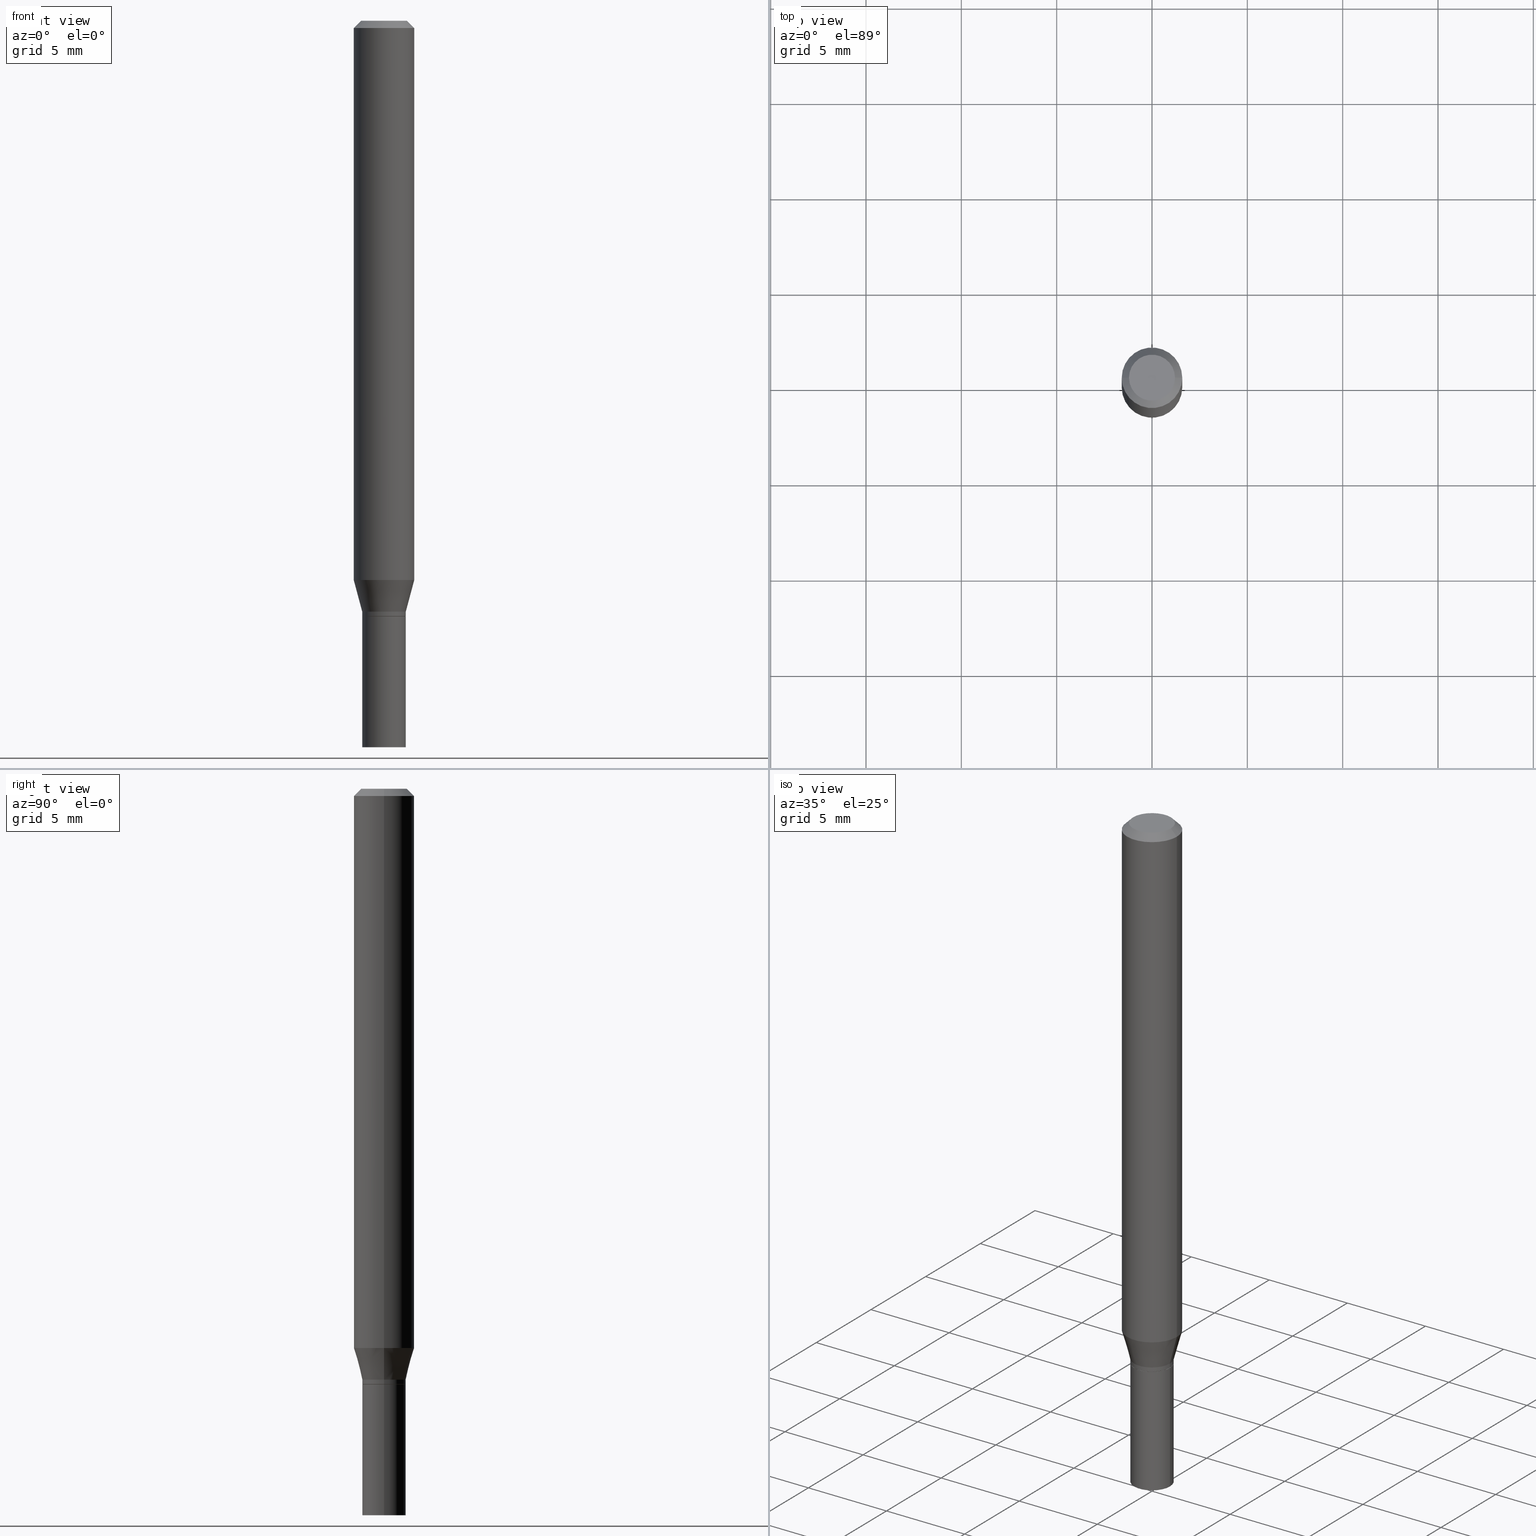
[diagram: canonical four-view strip — front | top / right | iso, engineering-drawing reading convention]
A machine part, canonical four-view strip (front | top / right | iso — engineering-drawing reading convention). The complete STEP part file that produces these views, byte-faithful:
ISO-10303-21;
HEADER;
FILE_DESCRIPTION (( 'STEP AP203' ),
    '1' );
FILE_NAME ('02496.STEP',
    '2024-03-18T20:57:49',
    ( '' ),
    ( '' ),
    'SwSTEP 2.0',
    'SolidWorks 2023',
    '' );
FILE_SCHEMA (( 'CONFIG_CONTROL_DESIGN' ));
ENDSEC;

DATA;
#1 = CARTESIAN_POINT ( 'NONE',  ( 3.007926631607718216E-29, -4.294522046777069173E-15, -1.230000000000000204 ) ) ;
#2 = DIRECTION ( 'NONE',  ( -2.445468806185136597E-29, 3.491481338843145583E-15, 1.000000000000000000 ) ) ;
#3 = LINE ( 'NONE', #354, #329 ) ;
#4 = AXIS2_PLACEMENT_3D ( 'NONE', #176, #289, #28 ) ;
#5 = PERSON_AND_ORGANIZATION ( #246, #456 ) ;
#6 = APPROVAL_DATE_TIME ( #402, #66 ) ;
#7 = LINE ( 'NONE', #290, #72 ) ;
#8 = DIRECTION ( 'NONE',  ( 1.000000000000000000, -6.982962677686257244E-15, 0.000000000000000000 ) ) ;
#9 = EDGE_CURVE ( 'NONE', #187, #444, #300, .T. ) ;
#10 = CIRCLE ( 'NONE', #71, 0.06250000000000000000 ) ;
#11 = CIRCLE ( 'NONE', #284, 0.04499999999999999833 ) ;
#12 = CARTESIAN_POINT ( 'NONE',  ( 3.007926631607718216E-29, -4.294522046777069173E-15, -1.230000000000000204 ) ) ;
#13 = DIRECTION ( 'NONE',  ( 1.000000000000000000, -6.982962677686259611E-15, 0.000000000000000000 ) ) ;
#14 = CC_DESIGN_PERSON_AND_ORGANIZATION_ASSIGNMENT ( #338, #70, ( #123 ) ) ;
#15 = COORDINATED_UNIVERSAL_TIME_OFFSET ( 5, 0, .BEHIND. ) ;
#16 = VERTEX_POINT ( 'NONE', #163 ) ;
#17 =( LENGTH_UNIT ( ) NAMED_UNIT ( * ) SI_UNIT ( $, .METRE. ) );
#18 = CIRCLE ( 'NONE', #345, 0.04500000000000019262 ) ;
#19 = CC_DESIGN_SECURITY_CLASSIFICATION ( #55, ( #138 ) ) ;
#20 = DIRECTION ( 'NONE',  ( 1.000000000000000000, -6.982962677686269077E-15, 0.000000000000000000 ) ) ;
#21 = DIRECTION ( 'NONE',  ( -2.445468806185136597E-29, 3.491481338843145583E-15, 1.000000000000000000 ) ) ;
#22 = CIRCLE ( 'NONE', #427, 0.04749999999999999362 ) ;
#23 = ORIENTED_EDGE ( 'NONE', *, *, #169, .T. ) ;
#24 = VECTOR ( 'NONE', #119, 39.37007874015748143 ) ;
#25 = CC_DESIGN_PERSON_AND_ORGANIZATION_ASSIGNMENT ( #261, #332, ( #138 ) ) ;
#26 = EDGE_CURVE ( 'NONE', #227, #368, #355, .T. ) ;
#27 = VERTEX_POINT ( 'NONE', #202 ) ;
#28 = DIRECTION ( 'NONE',  ( 1.000000000000000000, -6.982962677686259611E-15, 0.000000000000000000 ) ) ;
#29 = DIRECTION ( 'NONE',  ( 1.000000000000000000, -6.982962677686266711E-15, 4.876176775795935793E-29 ) ) ;
#30 = AXIS2_PLACEMENT_3D ( 'NONE', #167, #139, #20 ) ;
#31 = ORIENTED_EDGE ( 'NONE', *, *, #64, .T. ) ;
#32 = DIRECTION ( 'NONE',  ( -0.7071067811865454633, 2.468850131082235761E-15, -0.7071067811865493491 ) ) ;
#33 = CALENDAR_DATE ( 2024, 18, 3 ) ;
#34 = CARTESIAN_POINT ( 'NONE',  ( 3.316907271900976096E-16, 0.04749999999999999362, -1.224772766956247324E-16 ) ) ;
#35 = ORIENTED_EDGE ( 'NONE', *, *, #26, .F. ) ;
#36 = CARTESIAN_POINT ( 'NONE',  ( 3.007926631607718216E-29, -4.294522046777069173E-15, -1.230000000000000204 ) ) ;
#37 = FACE_OUTER_BOUND ( 'NONE', #312, .T. ) ;
#38 = EDGE_LOOP ( 'NONE', ( #133, #68, #414, #301 ) ) ;
#39 = ORIENTED_EDGE ( 'NONE', *, *, #9, .F. ) ;
#40 = CARTESIAN_POINT ( 'NONE',  ( 3.668203209277705088E-31, -5.237222008264718399E-17, -0.01499999999999999944 ) ) ;
#41 = AXIS2_PLACEMENT_3D ( 'NONE', #36, #126, #8 ) ;
#42 = DIRECTION ( 'NONE',  ( 1.000000000000000000, 0.000000000000000000, 0.000000000000000000 ) ) ;
#43 = LOCAL_TIME ( 16, 57, 49.00000000000000000, #228 ) ;
#44 = ORIENTED_EDGE ( 'NONE', *, *, #85, .F. ) ;
#45 = DIRECTION ( 'NONE',  ( 0.000000000000000000, 0.000000000000000000, 1.000000000000000000 ) ) ;
#46 = VERTEX_POINT ( 'NONE', #206 ) ;
#47 = AXIS2_PLACEMENT_3D ( 'NONE', #309, #45, #42 ) ;
#48 = ORIENTED_EDGE ( 'NONE', *, *, #275, .T. ) ;
#49 = ADVANCED_FACE ( 'NONE', ( #209 ), #350, .T. ) ;
#50 = VERTEX_POINT ( 'NONE', #318 ) ;
#51 = ADVANCED_FACE ( 'NONE', ( #131 ), #213, .T. ) ;
#52 = CARTESIAN_POINT ( 'NONE',  ( 3.007926631607718216E-29, -4.294522046777069173E-15, -1.230000000000000204 ) ) ;
#53 = ORIENTED_EDGE ( 'NONE', *, *, #296, .F. ) ;
#54 = DATE_TIME_ROLE ( 'classification_date' ) ;
#55 = SECURITY_CLASSIFICATION ( '', '', #374 ) ;
#56 = ORIENTED_EDGE ( 'NONE', *, *, #464, .T. ) ;
#57 = EDGE_LOOP ( 'NONE', ( #344, #415, #48, #184 ) ) ;
#58 = DIRECTION ( 'NONE',  ( -2.438088387897960049E-29, 3.491481338843145188E-15, 1.000000000000000000 ) ) ;
#59 = ORIENTED_EDGE ( 'NONE', *, *, #358, .F. ) ;
#60 = CYLINDRICAL_SURFACE ( 'NONE', #282, 0.04499999999999999833 ) ;
#61 = VECTOR ( 'NONE', #424, 39.37007874015748143 ) ;
#62 = AXIS2_PLACEMENT_3D ( 'NONE', #40, #260, #185 ) ;
#63 = APPLICATION_CONTEXT ( 'configuration controlled 3d designs of mechanical parts and assemblies' ) ;
#64 = EDGE_CURVE ( 'NONE', #235, #27, #10, .T. ) ;
#65 = CARTESIAN_POINT ( 'NONE',  ( 0.04500000000000019262, -4.573840553884520788E-15, -1.220000000000000195 ) ) ;
#66 = APPROVAL ( #182, 'UNSPECIFIED' ) ;
#67 = ORIENTED_EDGE ( 'NONE', *, *, #86, .T. ) ;
#68 = ORIENTED_EDGE ( 'NONE', *, *, #446, .T. ) ;
#69 = DIRECTION ( 'NONE',  ( 0.2588190451025205174, 1.565188264969628476E-15, 0.9659258262890684232 ) ) ;
#70 = PERSON_AND_ORGANIZATION_ROLE ( 'creator' ) ;
#71 = AXIS2_PLACEMENT_3D ( 'NONE', #323, #285, #459 ) ;
#72 = VECTOR ( 'NONE', #186, 39.37007874015748143 ) ;
#73 = CARTESIAN_POINT ( 'NONE',  ( 3.142333204959120083E-16, 0.04499999999999570316, -1.230000000000000204 ) ) ;
#74 = VERTEX_POINT ( 'NONE', #243 ) ;
#75 = PERSON_AND_ORGANIZATION_ROLE ( 'design_owner' ) ;
#76 =( NAMED_UNIT ( * ) SI_UNIT ( $, .STERADIAN. ) SOLID_ANGLE_UNIT ( ) );
#77 = DIRECTION ( 'NONE',  ( -2.445468806185136597E-29, 3.491481338843145583E-15, 1.000000000000000000 ) ) ;
#78 = PERSON_AND_ORGANIZATION ( #246, #456 ) ;
#79 = DIRECTION ( 'NONE',  ( -2.445468806185136597E-29, 3.491481338843145583E-15, 1.000000000000000000 ) ) ;
#80 = ORIENTED_EDGE ( 'NONE', *, *, #360, .T. ) ;
#81 = AXIS2_PLACEMENT_3D ( 'NONE', #73, #222, #114 ) ;
#82 = DIRECTION ( 'NONE',  ( -2.445468806185136877E-29, 3.491481338843145188E-15, 1.000000000000000000 ) ) ;
#83 = ORIENTED_EDGE ( 'NONE', *, *, #442, .F. ) ;
#84 = CARTESIAN_POINT ( 'NONE',  ( 3.668203209277704895E-29, -5.237222008264718177E-15, -1.500000000000000222 ) ) ;
#85 = EDGE_CURVE ( 'NONE', #50, #168, #22, .T. ) ;
#86 = EDGE_CURVE ( 'NONE', #245, #444, #135, .T. ) ;
#87 = ORIENTED_EDGE ( 'NONE', *, *, #85, .T. ) ;
#88 = DIRECTION ( 'NONE',  ( 2.445468806185136597E-29, -3.491481338843145583E-15, -1.000000000000000000 ) ) ;
#89 = DIRECTION ( 'NONE',  ( -2.445468806185136597E-29, 3.491481338843145583E-15, 1.000000000000000000 ) ) ;
#90 = ORIENTED_EDGE ( 'NONE', *, *, #446, .F. ) ;
#91 = ADVANCED_FACE ( 'NONE', ( #248 ), #392, .F. ) ;
#92 = CARTESIAN_POINT ( 'NONE',  ( 3.668203209277705088E-31, -5.237222008264718399E-17, -0.01499999999999999944 ) ) ;
#93 = ORIENTED_EDGE ( 'NONE', *, *, #346, .F. ) ;
#94 = AXIS2_PLACEMENT_3D ( 'NONE', #249, #321, #96 ) ;
#95 = APPROVAL_PERSON_ORGANIZATION ( #460, #146, #197 ) ;
#96 = DIRECTION ( 'NONE',  ( 1.000000000000000000, -6.982962677686257244E-15, 0.000000000000000000 ) ) ;
#97 = UNCERTAINTY_MEASURE_WITH_UNIT (LENGTH_MEASURE( 1.000000000000000082E-05 ), #156, 'distance_accuracy_value', 'NONE');
#98 = CARTESIAN_POINT ( 'NONE',  ( -0.04500000000000012323, 3.197442310920459593E-16, -2.213520790614713866E-30 ) ) ;
#99 = DIRECTION ( 'NONE',  ( -2.445468806185136597E-29, 3.491481338843145583E-15, 1.000000000000000000 ) ) ;
#100 = MANIFOLD_SOLID_BREP ( 'Body-Move/Copy2[2]', #455 ) ;
#101 = EDGE_CURVE ( 'NONE', #74, #16, #466, .T. ) ;
#102 = CONICAL_SURFACE ( 'NONE', #395, 0.04449999999999999789, 0.7853981633974739252 ) ;
#103 = AXIS2_PLACEMENT_3D ( 'NONE', #292, #77, #104 ) ;
#104 = DIRECTION ( 'NONE',  ( 1.000000000000000000, -6.982962677686270655E-15, 0.000000000000000000 ) ) ;
#105 = DIRECTION ( 'NONE',  ( -2.445468806185136597E-29, 3.491481338843145583E-15, 1.000000000000000000 ) ) ;
#106 = EDGE_CURVE ( 'NONE', #368, #227, #362, .T. ) ;
#107 = ADVANCED_FACE ( 'NONE', ( #188 ), #102, .T. ) ;
#108 = CARTESIAN_POINT ( 'NONE',  ( 0.04500000000000019262, -4.573840553884520788E-15, -1.220000000000000195 ) ) ;
#109 = DIRECTION ( 'NONE',  ( -2.445468806185136597E-29, 3.491481338843145583E-15, 1.000000000000000000 ) ) ;
#110 = PERSON_AND_ORGANIZATION ( #246, #456 ) ;
#111 = DIRECTION ( 'NONE',  ( -2.445468806185136877E-29, 3.491481338843145188E-15, 1.000000000000000000 ) ) ;
#112 = DATE_AND_TIME ( #33, #43 ) ;
#113 = AXIS2_PLACEMENT_3D ( 'NONE', #412, #447, #271 ) ;
#114 = DIRECTION ( 'NONE',  ( -1.000000000000000000, 6.982962677686265922E-15, -4.876176775795935793E-29 ) ) ;
#115 = LINE ( 'NONE', #406, #24 ) ;
#116 = CALENDAR_DATE ( 2024, 18, 3 ) ;
#117 = DIRECTION ( 'NONE',  ( -2.445468806185136597E-29, 3.491481338843145583E-15, 1.000000000000000000 ) ) ;
#118 = ORIENTED_EDGE ( 'NONE', *, *, #101, .F. ) ;
#119 = DIRECTION ( 'NONE',  ( 0.7071067811865656694, -2.468850131082446387E-15, 0.7071067811865294761 ) ) ;
#120 = LENGTH_MEASURE_WITH_UNIT ( LENGTH_MEASURE( 0.02539999999999999897 ), #17 );
#121 = CIRCLE ( 'NONE', #62, 0.06250000000000000000 ) ;
#122 = LINE ( 'NONE', #270, #303 ) ;
#123 = PRODUCT_DEFINITION ( 'UNKNOWN', '', #138, #336 ) ;
#124 = ORIENTED_EDGE ( 'NONE', *, *, #358, .T. ) ;
#125 = EDGE_CURVE ( 'NONE', #74, #409, #128, .T. ) ;
#126 = DIRECTION ( 'NONE',  ( -2.445468806185136597E-29, 3.491481338843145583E-15, 1.000000000000000000 ) ) ;
#127 = ORIENTED_EDGE ( 'NONE', *, *, #464, .F. ) ;
#128 = CIRCLE ( 'NONE', #251, 0.04500000000000006078 ) ;
#129 = AXIS2_PLACEMENT_3D ( 'NONE', #84, #383, #322 ) ;
#130 = ORIENTED_EDGE ( 'NONE', *, *, #106, .T. ) ;
#131 = FACE_OUTER_BOUND ( 'NONE', #57, .T. ) ;
#132 = EDGE_LOOP ( 'NONE', ( #87, #124 ) ) ;
#133 = ORIENTED_EDGE ( 'NONE', *, *, #263, .T. ) ;
#134 = ORIENTED_EDGE ( 'NONE', *, *, #86, .F. ) ;
#135 = LINE ( 'NONE', #283, #61 ) ;
#136 = CARTESIAN_POINT ( 'NONE',  ( 3.668203209277705088E-31, -5.237222008264718399E-17, -0.01499999999999999944 ) ) ;
#137 = CIRCLE ( 'NONE', #198, 0.04499999999999999833 ) ;
#138 = PRODUCT_DEFINITION_FORMATION_WITH_SPECIFIED_SOURCE ( 'ANY', '', #281, .NOT_KNOWN. ) ;
#139 = DIRECTION ( 'NONE',  ( -2.445468806185136597E-29, 3.491481338843145583E-15, 1.000000000000000000 ) ) ;
#140 = EDGE_CURVE ( 'NONE', #227, #74, #200, .T. ) ;
#141 = CARTESIAN_POINT ( 'NONE',  ( 0.06250000000000000000, -4.888073874380388472E-16, -0.01499999999999999944 ) ) ;
#142 = ADVANCED_FACE ( 'NONE', ( #416 ), #212, .F. ) ;
#143 = DIRECTION ( 'NONE',  ( -2.445468806185136597E-29, 3.491481338843145583E-15, 1.000000000000000000 ) ) ;
#144 = CARTESIAN_POINT ( 'NONE',  ( 2.983471943545866670E-29, -4.259607233388637524E-15, -1.220000000000000195 ) ) ;
#145 = AXIS2_PLACEMENT_3D ( 'NONE', #175, #99, #149 ) ;
#146 = APPROVAL ( #378, 'UNSPECIFIED' ) ;
#147 = FACE_OUTER_BOUND ( 'NONE', #380, .T. ) ;
#148 = CARTESIAN_POINT ( 'NONE',  ( 0.06250000000000000000, -4.364351673553916694E-16, 3.047610484872459871E-30 ) ) ;
#149 = DIRECTION ( 'NONE',  ( 1.000000000000000000, -6.982962677686266711E-15, 4.876176775795936353E-29 ) ) ;
#150 = DATE_AND_TIME ( #116, #252 ) ;
#151 = CARTESIAN_POINT ( 'NONE',  ( 0.04449999999999999789, -4.605263885934107852E-15, -1.230000000000000204 ) ) ;
#152 = APPROVAL_ROLE ( '' ) ;
#153 = AXIS2_PLACEMENT_3D ( 'NONE', #52, #89, #421 ) ;
#154 = LINE ( 'NONE', #377, #410 ) ;
#155 = ORIENTED_EDGE ( 'NONE', *, *, #247, .F. ) ;
#156 =( CONVERSION_BASED_UNIT ( 'INCH', #120 ) LENGTH_UNIT ( ) NAMED_UNIT ( #349 ) );
#157 = ORIENTED_EDGE ( 'NONE', *, *, #169, .F. ) ;
#158 = CYLINDRICAL_SURFACE ( 'NONE', #113, 0.04500000000000012323 ) ;
#159 = ORIENTED_EDGE ( 'NONE', *, *, #442, .T. ) ;
#160 = CIRCLE ( 'NONE', #103, 0.06250000000000000000 ) ;
#161 = CARTESIAN_POINT ( 'NONE',  ( -0.04449999999999999789, -3.978330529363824704E-15, -1.230000000000000204 ) ) ;
#162 = EDGE_LOOP ( 'NONE', ( #408, #53 ) ) ;
#163 = CARTESIAN_POINT ( 'NONE',  ( -0.04500000000000019262, -3.763674637602973398E-15, -1.220000000000000195 ) ) ;
#164 = DIRECTION ( 'NONE',  ( 1.000000000000000000, -6.982962677686266711E-15, 4.876176775795935793E-29 ) ) ;
#165 = CIRCLE ( 'NONE', #311, 0.04500000000000019262 ) ;
#166 = ORIENTED_EDGE ( 'NONE', *, *, #226, .T. ) ;
#167 = CARTESIAN_POINT ( 'NONE',  ( 3.007926631607718216E-29, -4.294522046777069173E-15, -1.230000000000000204 ) ) ;
#168 = VERTEX_POINT ( 'NONE', #361 ) ;
#169 = EDGE_CURVE ( 'NONE', #319, #454, #326, .T. ) ;
#170 = ORIENTED_EDGE ( 'NONE', *, *, #247, .T. ) ;
#171 = ADVANCED_FACE ( 'NONE', ( #147 ), #205, .T. ) ;
#172 = AXIS2_PLACEMENT_3D ( 'NONE', #92, #88, #384 ) ;
#173 = ADVANCED_FACE ( 'NONE', ( #215 ), #220, .T. ) ;
#174 = CARTESIAN_POINT ( 'NONE',  ( 0.000000000000000000, 0.000000000000000000, 0.000000000000000000 ) ) ;
#175 = CARTESIAN_POINT ( 'NONE',  ( 0.000000000000000000, 0.000000000000000000, 0.000000000000000000 ) ) ;
#176 = CARTESIAN_POINT ( 'NONE',  ( 2.983471943545866670E-29, -4.259607233388637524E-15, -1.220000000000000195 ) ) ;
#177 = FACE_OUTER_BOUND ( 'NONE', #450, .T. ) ;
#178 = VECTOR ( 'NONE', #452, 39.37007874015748143 ) ;
#179 = LOCAL_TIME ( 16, 57, 49.00000000000000000, #15 ) ;
#180 = EDGE_LOOP ( 'NONE', ( #130, #223, #229, #458 ) ) ;
#181 = DIRECTION ( 'NONE',  ( -2.438088387897960049E-29, 3.491481338843145188E-15, 1.000000000000000000 ) ) ;
#182 = APPROVAL_STATUS ( 'not_yet_approved' ) ;
#183 = CARTESIAN_POINT ( 'NONE',  ( -2.121106073929386760E-45, 3.028377322213383622E-31, 8.673617379884936499E-17 ) ) ;
#184 = ORIENTED_EDGE ( 'NONE', *, *, #125, .F. ) ;
#185 = DIRECTION ( 'NONE',  ( 1.000000000000000000, -6.982962677686266711E-15, 0.000000000000000000 ) ) ;
#186 = DIRECTION ( 'NONE',  ( -2.445468806185136877E-29, 3.491481338843145188E-15, 1.000000000000000000 ) ) ;
#187 = VERTEX_POINT ( 'NONE', #328 ) ;
#188 = FACE_OUTER_BOUND ( 'NONE', #180, .T. ) ;
#189 = EDGE_CURVE ( 'NONE', #50, #27, #3, .T. ) ;
#190 = CALENDAR_DATE ( 2024, 18, 3 ) ;
#191 = AXIS2_PLACEMENT_3D ( 'NONE', #183, #298, #429 ) ;
#192 = CARTESIAN_POINT ( 'NONE',  ( -0.04499999999999999833, -4.446127796428848702E-15, -1.230000000000000204 ) ) ;
#193 = EDGE_LOOP ( 'NONE', ( #341, #56, #388, #157 ) ) ;
#194 = ORIENTED_EDGE ( 'NONE', *, *, #262, .F. ) ;
#195 = EDGE_CURVE ( 'NONE', #409, #319, #295, .T. ) ;
#196 = LINE ( 'NONE', #445, #417 ) ;
#197 = APPROVAL_ROLE ( '' ) ;
#198 = AXIS2_PLACEMENT_3D ( 'NONE', #1, #143, #304 ) ;
#199 = CIRCLE ( 'NONE', #129, 0.04499999999999999833 ) ;
#200 = LINE ( 'NONE', #161, #178 ) ;
#201 = FACE_OUTER_BOUND ( 'NONE', #371, .T. ) ;
#202 = CARTESIAN_POINT ( 'NONE',  ( -0.06250000000000000000, -1.597884641570970340E-15, -0.01499999999999999944 ) ) ;
#203 = VERTEX_POINT ( 'NONE', #257 ) ;
#204 = PRODUCT_DEFINITION_SHAPE ( 'NONE', 'NONE',  #123 ) ;
#205 = CONICAL_SURFACE ( 'NONE', #4, 0.04500000000000019262, 0.2617993877991491858 ) ;
#206 = CARTESIAN_POINT ( 'NONE',  ( 0.04499999999999999833, -5.551455328760600652E-15, -1.500000000000000222 ) ) ;
#207 = CONICAL_SURFACE ( 'NONE', #390, 0.06250000000000000000, 0.7853981633974456145 ) ;
#208 = CARTESIAN_POINT ( 'NONE',  ( 0.04500000000000006078, -4.607009626603530145E-15, -1.229500000000000037 ) ) ;
#209 = FACE_OUTER_BOUND ( 'NONE', #38, .T. ) ;
#210 = CC_DESIGN_DATE_AND_TIME_ASSIGNMENT ( #387, #54, ( #55 ) ) ;
#211 = ADVANCED_FACE ( 'NONE', ( #250 ), #60, .T. ) ;
#212 = PLANE ( 'NONE',  #373 ) ;
#213 = CONICAL_SURFACE ( 'NONE', #94, 0.04449999999999999789, 0.7853981633974739252 ) ;
#214 = CARTESIAN_POINT ( 'NONE',  ( 3.006703897204625414E-29, -4.292776306107647670E-15, -1.229500000000000037 ) ) ;
#215 = FACE_OUTER_BOUND ( 'NONE', #385, .T. ) ;
#216 = DIRECTION ( 'NONE',  ( 1.000000000000000000, -6.982962677686259611E-15, 0.000000000000000000 ) ) ;
#217 = DIRECTION ( 'NONE',  ( 1.000000000000000000, -6.982962677686265922E-15, 4.876176775795935793E-29 ) ) ;
#218 = CARTESIAN_POINT ( 'NONE',  ( 0.000000000000000000, 0.000000000000000000, 0.000000000000000000 ) ) ;
#219 = CC_DESIGN_APPROVAL ( #146, ( #55 ) ) ;
#220 = CYLINDRICAL_SURFACE ( 'NONE', #145, 0.04500000000000012323 ) ;
#221 = DATE_TIME_ROLE ( 'creation_date' ) ;
#222 = DIRECTION ( 'NONE',  ( 2.438088387897960049E-29, -3.491481338843145188E-15, -1.000000000000000000 ) ) ;
#223 = ORIENTED_EDGE ( 'NONE', *, *, #140, .T. ) ;
#224 = APPLICATION_CONTEXT ( 'configuration controlled 3d designs of mechanical parts and assemblies' ) ;
#225 = LINE ( 'NONE', #148, #356 ) ;
#226 = EDGE_CURVE ( 'NONE', #16, #319, #18, .T. ) ;
#227 = VERTEX_POINT ( 'NONE', #432 ) ;
#228 = COORDINATED_UNIVERSAL_TIME_OFFSET ( 5, 0, .BEHIND. ) ;
#229 = ORIENTED_EDGE ( 'NONE', *, *, #316, .F. ) ;
#230 = VECTOR ( 'NONE', #69, 39.37007874015748143 ) ;
#231 = CONICAL_SURFACE ( 'NONE', #172, 0.06250000000000000000, 0.7853981633974456145 ) ;
#232 = PRODUCT_RELATED_PRODUCT_CATEGORY ( 'detail', '', ( #281 ) ) ;
#233 = PERSON_AND_ORGANIZATION_ROLE ( 'classification_officer' ) ;
#234 = FACE_OUTER_BOUND ( 'NONE', #193, .T. ) ;
#235 = VERTEX_POINT ( 'NONE', #141 ) ;
#236 = DIRECTION ( 'NONE',  ( -2.445468806185136597E-29, 3.491481338843145583E-15, 1.000000000000000000 ) ) ;
#237 = DIRECTION ( 'NONE',  ( 1.000000000000000000, -6.982962677686269866E-15, 0.000000000000000000 ) ) ;
#238 = CC_DESIGN_APPROVAL ( #66, ( #123 ) ) ;
#239 = ORIENTED_EDGE ( 'NONE', *, *, #189, .T. ) ;
#240 = ORIENTED_EDGE ( 'NONE', *, *, #125, .T. ) ;
#241 = ORIENTED_EDGE ( 'NONE', *, *, #316, .T. ) ;
#242 = CALENDAR_DATE ( 2024, 18, 3 ) ;
#243 = CARTESIAN_POINT ( 'NONE',  ( -0.04500000000000006078, -3.973032075015602302E-15, -1.229500000000000037 ) ) ;
#244 = APPROVAL_PERSON_ORGANIZATION ( #372, #66, #152 ) ;
#245 = VERTEX_POINT ( 'NONE', #288 ) ;
#246 = PERSON ( 'UNSPECIFIED', 'UNSPECIFIED', 'UNSPECIFIED', ('UNSPECIFIED'), ('UNSPECIFIED'), ('UNSPECIFIED') ) ;
#247 = EDGE_CURVE ( 'NONE', #444, #187, #137, .T. ) ;
#248 = FACE_OUTER_BOUND ( 'NONE', #162, .T. ) ;
#249 = CARTESIAN_POINT ( 'NONE',  ( 3.007926631607718216E-29, -4.294522046777069173E-15, -1.230000000000000204 ) ) ;
#250 = FACE_OUTER_BOUND ( 'NONE', #268, .T. ) ;
#251 = AXIS2_PLACEMENT_3D ( 'NONE', #407, #79, #237 ) ;
#252 = LOCAL_TIME ( 16, 57, 49.00000000000000000, #440 ) ;
#253 = DIRECTION ( 'NONE',  ( 1.000000000000000000, -6.982962677686266711E-15, 4.876176775795935793E-29 ) ) ;
#254 = FACE_OUTER_BOUND ( 'NONE', #287, .T. ) ;
#255 = CARTESIAN_POINT ( 'NONE',  ( 2.983471943545866670E-29, -4.259607233388637524E-15, -1.220000000000000195 ) ) ;
#256 = CYLINDRICAL_SURFACE ( 'NONE', #465, 0.04499999999999999833 ) ;
#257 = CARTESIAN_POINT ( 'NONE',  ( -0.06250000000000000000, -3.587486272909356218E-15, -1.154689110867545443 ) ) ;
#258 = APPLICATION_PROTOCOL_DEFINITION ( 'international standard', 'config_control_design', 1994, #224 ) ;
#259 = CARTESIAN_POINT ( 'NONE',  ( 3.668203209277704895E-29, -5.237222008264718177E-15, -1.500000000000000222 ) ) ;
#260 = DIRECTION ( 'NONE',  ( -2.445468806185136597E-29, 3.491481338843145583E-15, 1.000000000000000000 ) ) ;
#261 = PERSON_AND_ORGANIZATION ( #246, #456 ) ;
#262 = EDGE_CURVE ( 'NONE', #27, #235, #121, .T. ) ;
#263 = EDGE_CURVE ( 'NONE', #454, #203, #330, .T. ) ;
#264 = FACE_OUTER_BOUND ( 'NONE', #132, .T. ) ;
#265 = APPROVAL_DATE_TIME ( #112, #320 ) ;
#266 = ORIENTED_EDGE ( 'NONE', *, *, #262, .T. ) ;
#267 = DIRECTION ( 'NONE',  ( 1.000000000000000000, -6.982962677686257244E-15, 0.000000000000000000 ) ) ;
#268 = EDGE_LOOP ( 'NONE', ( #134, #438, #405, #155 ) ) ;
#269 = LOCAL_TIME ( 16, 57, 49.00000000000000000, #297 ) ;
#270 = CARTESIAN_POINT ( 'NONE',  ( -0.06250000000000000000, 4.440892098500626162E-16, -3.074334431409316114E-30 ) ) ;
#271 = DIRECTION ( 'NONE',  ( 1.000000000000000000, -6.982962677686266711E-15, 4.876176775795936353E-29 ) ) ;
#272 = COORDINATED_UNIVERSAL_TIME_OFFSET ( 5, 0, .BEHIND. ) ;
#273 = AXIS2_PLACEMENT_3D ( 'NONE', #426, #58, #324 ) ;
#274 = AXIS2_PLACEMENT_3D ( 'NONE', #436, #431, #29 ) ;
#275 = EDGE_CURVE ( 'NONE', #368, #409, #115, .T. ) ;
#276 = ORIENTED_EDGE ( 'NONE', *, *, #315, .F. ) ;
#277 = ORIENTED_EDGE ( 'NONE', *, *, #9, .T. ) ;
#278 = EDGE_CURVE ( 'NONE', #46, #245, #199, .T. ) ;
#279 = FACE_OUTER_BOUND ( 'NONE', #307, .T. ) ;
#280 = ORIENTED_EDGE ( 'NONE', *, *, #278, .T. ) ;
#281 = PRODUCT ( '02496', '02496', '', ( #352 ) ) ;
#282 = AXIS2_PLACEMENT_3D ( 'NONE', #174, #105, #253 ) ;
#283 = CARTESIAN_POINT ( 'NONE',  ( -0.04499999999999999833, 3.197442310920450718E-16, -2.213520790614707560E-30 ) ) ;
#284 = AXIS2_PLACEMENT_3D ( 'NONE', #259, #2, #334 ) ;
#285 = DIRECTION ( 'NONE',  ( -2.445468806185136597E-29, 3.491481338843145583E-15, 1.000000000000000000 ) ) ;
#286 = FACE_OUTER_BOUND ( 'NONE', #335, .T. ) ;
#287 = EDGE_LOOP ( 'NONE', ( #90, #302, #80, #194 ) ) ;
#288 = CARTESIAN_POINT ( 'NONE',  ( -0.04499999999999999833, -4.446127796428848702E-15, -1.500000000000000222 ) ) ;
#289 = DIRECTION ( 'NONE',  ( -2.445468806185136597E-29, 3.491481338843145583E-15, 1.000000000000000000 ) ) ;
#290 = CARTESIAN_POINT ( 'NONE',  ( 0.04499999999999999833, -3.142333204958819823E-16, 2.194279549108170967E-30 ) ) ;
#291 = CIRCLE ( 'NONE', #191, 0.04749999999999999362 ) ;
#292 = CARTESIAN_POINT ( 'NONE',  ( 2.823756201468233313E-29, -4.031575482759418834E-15, -1.154689110867545443 ) ) ;
#293 = CC_DESIGN_PERSON_AND_ORGANIZATION_ASSIGNMENT ( #5, #299, ( #138 ) ) ;
#294 = ADVANCED_FACE ( 'NONE', ( #279 ), #207, .T. ) ;
#295 = LINE ( 'NONE', #430, #422 ) ;
#296 = EDGE_CURVE ( 'NONE', #245, #46, #11, .T. ) ;
#297 = COORDINATED_UNIVERSAL_TIME_OFFSET ( 5, 0, .BEHIND. ) ;
#298 = DIRECTION ( 'NONE',  ( -2.445468806185136597E-29, 3.491481338843145583E-15, 1.000000000000000000 ) ) ;
#299 = PERSON_AND_ORGANIZATION_ROLE ( 'design_supplier' ) ;
#300 = CIRCLE ( 'NONE', #30, 0.04499999999999999833 ) ;
#301 = ORIENTED_EDGE ( 'NONE', *, *, #360, .F. ) ;
#302 = ORIENTED_EDGE ( 'NONE', *, *, #315, .T. ) ;
#303 = VECTOR ( 'NONE', #82, 39.37007874015748143 ) ;
#304 = DIRECTION ( 'NONE',  ( 1.000000000000000000, -6.982962677686269077E-15, 0.000000000000000000 ) ) ;
#305 = PERSON_AND_ORGANIZATION ( #246, #456 ) ;
#306 = ORIENTED_EDGE ( 'NONE', *, *, #189, .F. ) ;
#307 = EDGE_LOOP ( 'NONE', ( #59, #159, #31, #306 ) ) ;
#308 = CARTESIAN_POINT ( 'NONE',  ( 2.823756201468233313E-29, -4.031575482759418834E-15, -1.154689110867545443 ) ) ;
#309 = CARTESIAN_POINT ( 'NONE',  ( 0.000000000000000000, 0.000000000000000000, 0.000000000000000000 ) ) ;
#310 = ORIENTED_EDGE ( 'NONE', *, *, #101, .T. ) ;
#311 = AXIS2_PLACEMENT_3D ( 'NONE', #144, #109, #216 ) ;
#312 = EDGE_LOOP ( 'NONE', ( #277, #170 ) ) ;
#313 = CALENDAR_DATE ( 2024, 18, 3 ) ;
#314 = ORIENTED_EDGE ( 'NONE', *, *, #106, .F. ) ;
#315 = EDGE_CURVE ( 'NONE', #203, #454, #160, .T. ) ;
#316 = EDGE_CURVE ( 'NONE', #409, #74, #375, .T. ) ;
#317 = CC_DESIGN_APPROVAL ( #320, ( #138 ) ) ;
#318 = CARTESIAN_POINT ( 'NONE',  ( -0.04749999999999999362, 3.578768372314211985E-16, 8.673617379884694910E-17 ) ) ;
#319 = VERTEX_POINT ( 'NONE', #65 ) ;
#320 = APPROVAL ( #366, 'UNSPECIFIED' ) ;
#321 = DIRECTION ( 'NONE',  ( -2.445468806185136597E-29, 3.491481338843145583E-15, 1.000000000000000000 ) ) ;
#322 = DIRECTION ( 'NONE',  ( 1.000000000000000000, -6.982962677686269077E-15, 0.000000000000000000 ) ) ;
#323 = CARTESIAN_POINT ( 'NONE',  ( 3.668203209277705088E-31, -5.237222008264718399E-17, -0.01499999999999999944 ) ) ;
#324 = DIRECTION ( 'NONE',  ( 1.000000000000000000, -6.982962677686265922E-15, 4.876176775795935793E-29 ) ) ;
#325 = DIRECTION ( 'NONE',  ( -2.445468806185136597E-29, 3.491481338843145583E-15, 1.000000000000000000 ) ) ;
#326 = LINE ( 'NONE', #108, #230 ) ;
#327 = DIRECTION ( 'NONE',  ( -1.000000000000000000, 6.982962677686266711E-15, 0.000000000000000000 ) ) ;
#328 = CARTESIAN_POINT ( 'NONE',  ( 0.04499999999999999833, -4.608755367272951648E-15, -1.230000000000000204 ) ) ;
#329 = VECTOR ( 'NONE', #32, 39.37007874015748854 ) ;
#330 = CIRCLE ( 'NONE', #437, 0.06250000000000000000 ) ;
#331 = DIRECTION ( 'NONE',  ( 1.000000000000000000, -6.982962677686266711E-15, 4.876176775795935793E-29 ) ) ;
#332 = PERSON_AND_ORGANIZATION_ROLE ( 'creator' ) ;
#333 = CARTESIAN_POINT ( 'NONE',  ( 0.06250000000000000000, -4.468010650114809714E-15, -1.154689110867545443 ) ) ;
#334 = DIRECTION ( 'NONE',  ( 1.000000000000000000, -6.982962677686269077E-15, 0.000000000000000000 ) ) ;
#335 = EDGE_LOOP ( 'NONE', ( #241, #310, #93, #418 ) ) ;
#336 = DESIGN_CONTEXT ( 'detailed design', #224, 'design' ) ;
#337 = DIRECTION ( 'NONE',  ( -2.445468806185136597E-29, 3.491481338843145583E-15, 1.000000000000000000 ) ) ;
#338 = PERSON_AND_ORGANIZATION ( #246, #456 ) ;
#339 = DIRECTION ( 'NONE',  ( 2.445468806185136597E-29, -3.491481338843145583E-15, -1.000000000000000000 ) ) ;
#340 = VECTOR ( 'NONE', #111, 39.37007874015748143 ) ;
#341 = ORIENTED_EDGE ( 'NONE', *, *, #346, .T. ) ;
#342 = AXIS2_PLACEMENT_3D ( 'NONE', #214, #359, #400 ) ;
#343 = DIRECTION ( 'NONE',  ( -0.2588190451025205174, 5.211531920934544731E-15, 0.9659258262890684232 ) ) ;
#344 = ORIENTED_EDGE ( 'NONE', *, *, #140, .F. ) ;
#345 = AXIS2_PLACEMENT_3D ( 'NONE', #255, #325, #394 ) ;
#346 = EDGE_CURVE ( 'NONE', #319, #16, #165, .T. ) ;
#347 = EDGE_CURVE ( 'NONE', #46, #187, #7, .T. ) ;
#348 = CARTESIAN_POINT ( 'NONE',  ( 0.000000000000000000, 0.000000000000000000, 0.000000000000000000 ) ) ;
#349 = DIMENSIONAL_EXPONENTS ( 1.000000000000000000, 0.000000000000000000, 0.000000000000000000, 0.000000000000000000, 0.000000000000000000, 0.000000000000000000, 0.000000000000000000 ) ;
#350 = CYLINDRICAL_SURFACE ( 'NONE', #389, 0.06250000000000000000 ) ;
#351 = ORIENTED_EDGE ( 'NONE', *, *, #347, .F. ) ;
#352 = MECHANICAL_CONTEXT ( 'NONE', #63, 'mechanical' ) ;
#353 = DIRECTION ( 'NONE',  ( 1.000000000000000000, -6.982962677686267499E-15, 4.884662768193073002E-29 ) ) ;
#354 = CARTESIAN_POINT ( 'NONE',  ( -0.06250000000000000000, 3.840629472727444916E-16, -0.01499999999999999944 ) ) ;
#355 = CIRCLE ( 'NONE', #153, 0.04449999999999999789 ) ;
#356 = VECTOR ( 'NONE', #369, 39.37007874015748143 ) ;
#357 = SHAPE_DEFINITION_REPRESENTATION ( #204, #462 ) ;
#358 = EDGE_CURVE ( 'NONE', #168, #50, #291, .T. ) ;
#359 = DIRECTION ( 'NONE',  ( -2.445468806185136597E-29, 3.491481338843145583E-15, 1.000000000000000000 ) ) ;
#360 = EDGE_CURVE ( 'NONE', #454, #235, #225, .T. ) ;
#361 = CARTESIAN_POINT ( 'NONE',  ( 0.04749999999999999362, -4.035134999187577144E-16, 8.673617379885194112E-17 ) ) ;
#362 = CIRCLE ( 'NONE', #41, 0.04449999999999999789 ) ;
#363 = DIRECTION ( 'NONE',  ( -2.445468806185136597E-29, 3.491481338843145583E-15, 1.000000000000000000 ) ) ;
#364 = APPROVAL_PERSON_ORGANIZATION ( #78, #320, #434 ) ;
#365 = CARTESIAN_POINT ( 'NONE',  ( 3.007926631607718216E-29, -4.294522046777069173E-15, -1.230000000000000204 ) ) ;
#366 = APPROVAL_STATUS ( 'not_yet_approved' ) ;
#367 = PLANE ( 'NONE',  #428 ) ;
#368 = VERTEX_POINT ( 'NONE', #151 ) ;
#369 = DIRECTION ( 'NONE',  ( -2.445468806185136877E-29, 3.491481338843145188E-15, 1.000000000000000000 ) ) ;
#370 = ORIENTED_EDGE ( 'NONE', *, *, #226, .F. ) ;
#371 = EDGE_LOOP ( 'NONE', ( #83, #44, #239, #266 ) ) ;
#372 = PERSON_AND_ORGANIZATION ( #246, #456 ) ;
#373 = AXIS2_PLACEMENT_3D ( 'NONE', #365, #181, #217 ) ;
#374 = SECURITY_CLASSIFICATION_LEVEL ( 'unclassified' ) ;
#375 = CIRCLE ( 'NONE', #342, 0.04500000000000006078 ) ;
#376 = DIRECTION ( 'NONE',  ( 0.7071067811865454633, -7.319954787623246579E-15, -0.7071067811865493491 ) ) ;
#377 = CARTESIAN_POINT ( 'NONE',  ( -0.04500000000000019262, -3.939863002296591368E-15, -1.220000000000000195 ) ) ;
#378 = APPROVAL_STATUS ( 'not_yet_approved' ) ;
#379 = CC_DESIGN_DATE_AND_TIME_ASSIGNMENT ( #150, #221, ( #123 ) ) ;
#380 = EDGE_LOOP ( 'NONE', ( #127, #166, #23, #276 ) ) ;
#381 = ADVANCED_FACE ( 'NONE', ( #254 ), #433, .T. ) ;
#382 = ADVANCED_FACE ( 'NONE', ( #177 ), #256, .T. ) ;
#383 = DIRECTION ( 'NONE',  ( -2.445468806185136597E-29, 3.491481338843145583E-15, 1.000000000000000000 ) ) ;
#384 = DIRECTION ( 'NONE',  ( -1.000000000000000000, 6.982962677686266711E-15, 0.000000000000000000 ) ) ;
#385 = EDGE_LOOP ( 'NONE', ( #118, #240, #386, #370 ) ) ;
#386 = ORIENTED_EDGE ( 'NONE', *, *, #195, .T. ) ;
#387 = DATE_AND_TIME ( #242, #179 ) ;
#388 = ORIENTED_EDGE ( 'NONE', *, *, #263, .F. ) ;
#389 = AXIS2_PLACEMENT_3D ( 'NONE', #348, #21, #164 ) ;
#390 = AXIS2_PLACEMENT_3D ( 'NONE', #136, #339, #327 ) ;
#391 = DIRECTION ( 'NONE',  ( -2.445468806185136597E-29, 3.491481338843145583E-15, 1.000000000000000000 ) ) ;
#392 = PLANE ( 'NONE',  #273 ) ;
#393 = ADVANCED_FACE ( 'NONE', ( #37 ), #404, .F. ) ;
#394 = DIRECTION ( 'NONE',  ( 1.000000000000000000, -6.982962677686259611E-15, 0.000000000000000000 ) ) ;
#395 = AXIS2_PLACEMENT_3D ( 'NONE', #12, #117, #267 ) ;
#396 = CONICAL_SURFACE ( 'NONE', #448, 0.04500000000000019262, 0.2617993877991491858 ) ;
#397 = APPROVAL_DATE_TIME ( #453, #146 ) ;
#398 = CC_DESIGN_PERSON_AND_ORGANIZATION_ASSIGNMENT ( #305, #75, ( #281 ) ) ;
#399 = ADVANCED_FACE ( 'NONE', ( #264 ), #367, .F. ) ;
#400 = DIRECTION ( 'NONE',  ( 1.000000000000000000, -6.982962677686269866E-15, 0.000000000000000000 ) ) ;
#401 = DIRECTION ( 'NONE',  ( -2.445468806185136877E-29, 3.491481338843145188E-15, 1.000000000000000000 ) ) ;
#402 = DATE_AND_TIME ( #190, #269 ) ;
#403 = CLOSED_SHELL ( 'NONE', ( #382, #91, #211, #393 ) ) ;
#404 = PLANE ( 'NONE',  #81 ) ;
#405 = ORIENTED_EDGE ( 'NONE', *, *, #347, .T. ) ;
#406 = CARTESIAN_POINT ( 'NONE',  ( 0.04449999999999999789, -4.605263885934107852E-15, -1.230000000000000204 ) ) ;
#407 = CARTESIAN_POINT ( 'NONE',  ( 3.006703897204625414E-29, -4.292776306107647670E-15, -1.229500000000000037 ) ) ;
#408 = ORIENTED_EDGE ( 'NONE', *, *, #278, .F. ) ;
#409 = VERTEX_POINT ( 'NONE', #208 ) ;
#410 = VECTOR ( 'NONE', #343, 39.37007874015748143 ) ;
#411 = APPLICATION_PROTOCOL_DEFINITION ( 'international standard', 'config_control_design', 1994, #63 ) ;
#412 = CARTESIAN_POINT ( 'NONE',  ( 0.000000000000000000, 0.000000000000000000, 0.000000000000000000 ) ) ;
#413 = CC_DESIGN_PERSON_AND_ORGANIZATION_ASSIGNMENT ( #110, #233, ( #55 ) ) ;
#414 = ORIENTED_EDGE ( 'NONE', *, *, #64, .F. ) ;
#415 = ORIENTED_EDGE ( 'NONE', *, *, #26, .T. ) ;
#416 = FACE_OUTER_BOUND ( 'NONE', #419, .T. ) ;
#417 = VECTOR ( 'NONE', #376, 39.37007874015748854 ) ;
#418 = ORIENTED_EDGE ( 'NONE', *, *, #195, .F. ) ;
#419 = EDGE_LOOP ( 'NONE', ( #314, #35 ) ) ;
#420 = MANIFOLD_SOLID_BREP ( 'Body-Move/Copy2[1]', #403 ) ;
#421 = DIRECTION ( 'NONE',  ( 1.000000000000000000, -6.982962677686257244E-15, 0.000000000000000000 ) ) ;
#422 = VECTOR ( 'NONE', #401, 39.37007874015748143 ) ;
#423 = LOCAL_TIME ( 16, 57, 49.00000000000000000, #272 ) ;
#424 = DIRECTION ( 'NONE',  ( -2.445468806185136877E-29, 3.491481338843145188E-15, 1.000000000000000000 ) ) ;
#425 = ADVANCED_FACE ( 'NONE', ( #201 ), #231, .T. ) ;
#426 = CARTESIAN_POINT ( 'NONE',  ( 3.576687321579069994E-29, -5.368277968210015545E-15, -1.500000000000000222 ) ) ;
#427 = AXIS2_PLACEMENT_3D ( 'NONE', #463, #391, #353 ) ;
#428 = AXIS2_PLACEMENT_3D ( 'NONE', #34, #443, #451 ) ;
#429 = DIRECTION ( 'NONE',  ( 1.000000000000000000, -6.982962677686267499E-15, 4.884662768193073002E-29 ) ) ;
#430 = CARTESIAN_POINT ( 'NONE',  ( 0.04500000000000012323, -3.142333204958828697E-16, 2.194279549108177273E-30 ) ) ;
#431 = DIRECTION ( 'NONE',  ( -2.445468806185136597E-29, 3.491481338843145583E-15, 1.000000000000000000 ) ) ;
#432 = CARTESIAN_POINT ( 'NONE',  ( -0.04449999999999999789, -3.975681302189713503E-15, -1.230000000000000204 ) ) ;
#433 = CYLINDRICAL_SURFACE ( 'NONE', #274, 0.06250000000000000000 ) ;
#434 = APPROVAL_ROLE ( '' ) ;
#435 =( NAMED_UNIT ( * ) PLANE_ANGLE_UNIT ( ) SI_UNIT ( $, .RADIAN. ) );
#436 = CARTESIAN_POINT ( 'NONE',  ( 0.000000000000000000, 0.000000000000000000, 0.000000000000000000 ) ) ;
#437 = AXIS2_PLACEMENT_3D ( 'NONE', #308, #337, #439 ) ;
#438 = ORIENTED_EDGE ( 'NONE', *, *, #296, .T. ) ;
#439 = DIRECTION ( 'NONE',  ( 1.000000000000000000, -6.982962677686270655E-15, 0.000000000000000000 ) ) ;
#440 = COORDINATED_UNIVERSAL_TIME_OFFSET ( 5, 0, .BEHIND. ) ;
#441 = ADVANCED_FACE ( 'NONE', ( #286 ), #158, .T. ) ;
#442 = EDGE_CURVE ( 'NONE', #168, #235, #196, .T. ) ;
#443 = DIRECTION ( 'NONE',  ( 2.438088387897960049E-29, -3.491481338843145188E-15, -1.000000000000000000 ) ) ;
#444 = VERTEX_POINT ( 'NONE', #192 ) ;
#445 = CARTESIAN_POINT ( 'NONE',  ( 0.06250000000000000000, -4.811533449433679005E-16, -0.01499999999999999944 ) ) ;
#446 = EDGE_CURVE ( 'NONE', #203, #27, #122, .T. ) ;
#447 = DIRECTION ( 'NONE',  ( -2.445468806185136597E-29, 3.491481338843145583E-15, 1.000000000000000000 ) ) ;
#448 = AXIS2_PLACEMENT_3D ( 'NONE', #449, #236, #13 ) ;
#449 = CARTESIAN_POINT ( 'NONE',  ( 2.983471943545866670E-29, -4.259607233388637524E-15, -1.220000000000000195 ) ) ;
#450 = EDGE_LOOP ( 'NONE', ( #280, #67, #39, #351 ) ) ;
#451 = DIRECTION ( 'NONE',  ( -1.000000000000000000, 6.982962677686265922E-15, -4.876176775795935793E-29 ) ) ;
#452 = DIRECTION ( 'NONE',  ( -0.7071067811865656694, 7.493145998870420424E-15, 0.7071067811865294761 ) ) ;
#453 = DATE_AND_TIME ( #313, #423 ) ;
#454 = VERTEX_POINT ( 'NONE', #333 ) ;
#455 = CLOSED_SHELL ( 'NONE', ( #441, #107, #294, #49, #461, #171, #381, #425, #399, #142, #51, #173 ) ) ;
#456 = ORGANIZATION ( 'UNSPECIFIED', 'UNSPECIFIED', '' ) ;
#457 =( GEOMETRIC_REPRESENTATION_CONTEXT ( 3 ) GLOBAL_UNCERTAINTY_ASSIGNED_CONTEXT ( ( #97 ) ) GLOBAL_UNIT_ASSIGNED_CONTEXT ( ( #156, #435, #76 ) ) REPRESENTATION_CONTEXT ( 'NONE', 'WORKASPACE' ) );
#458 = ORIENTED_EDGE ( 'NONE', *, *, #275, .F. ) ;
#459 = DIRECTION ( 'NONE',  ( 1.000000000000000000, -6.982962677686266711E-15, 0.000000000000000000 ) ) ;
#460 = PERSON_AND_ORGANIZATION ( #246, #456 ) ;
#461 = ADVANCED_FACE ( 'NONE', ( #234 ), #396, .T. ) ;
#462 = ADVANCED_BREP_SHAPE_REPRESENTATION ( '02496', ( #420, #100, #47 ), #457 ) ;
#463 = CARTESIAN_POINT ( 'NONE',  ( -2.121106073929386760E-45, 3.028377322213383622E-31, 8.673617379884936499E-17 ) ) ;
#464 = EDGE_CURVE ( 'NONE', #16, #203, #154, .T. ) ;
#465 = AXIS2_PLACEMENT_3D ( 'NONE', #218, #363, #331 ) ;
#466 = LINE ( 'NONE', #98, #340 ) ;
ENDSEC;
END-ISO-10303-21;
